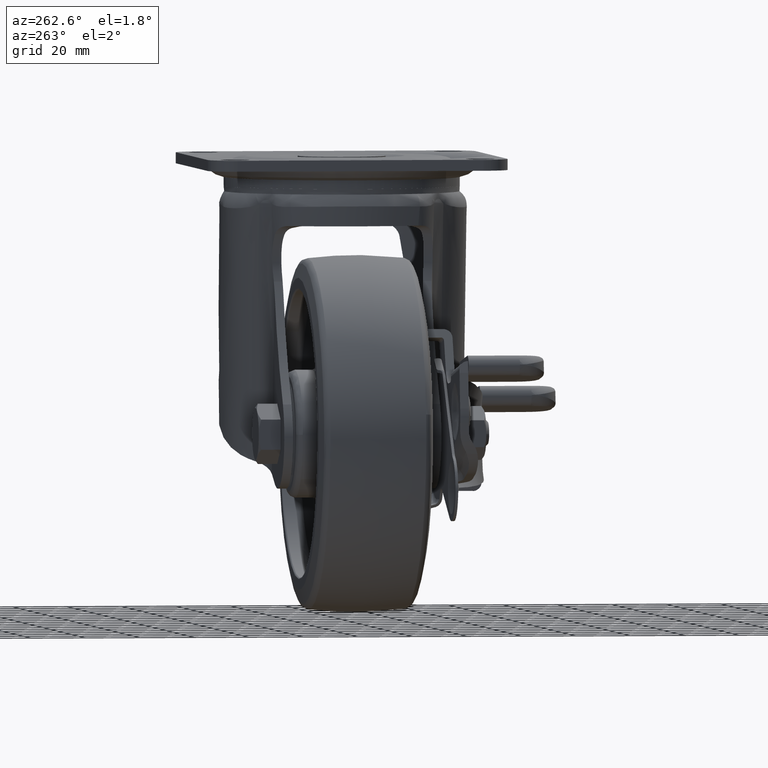
[diagram: clean part render]
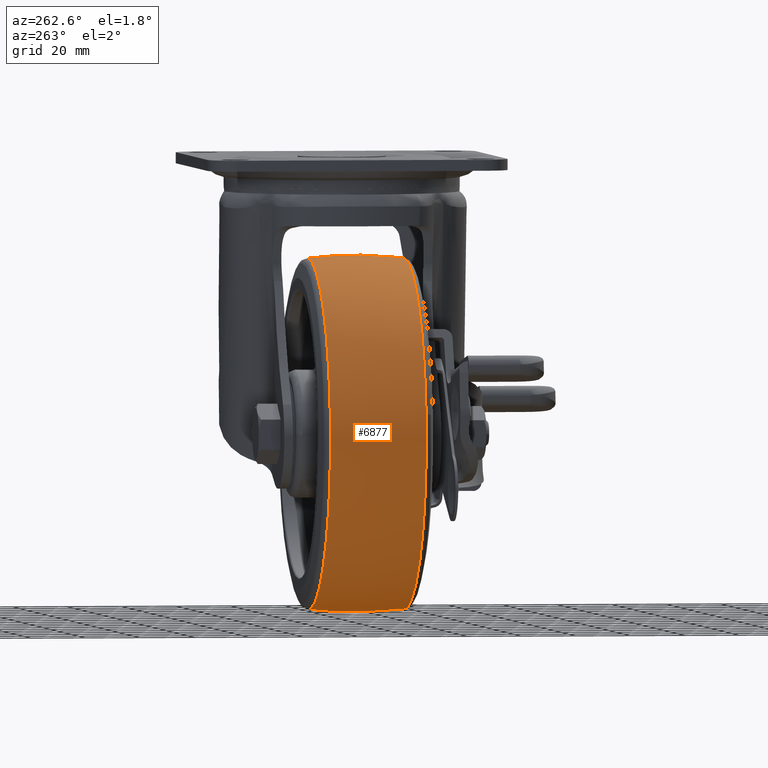
[diagram: same view with one face highlighted and labeled with its STEP entity id]
A machine part, auxiliary view. The second image highlights one B-rep face of the part: STEP entity #6877.
In plain terms, the highlighted face is a freeform B-spline surface patch.
Its self-contained STEP definition (entity closure, byte-faithful):
#6491=CARTESIAN_POINT('',(-103.356164379919800,-17.579459155829429,-91.186063303295668));
#6492=VERTEX_POINT('',#6491);
#6506=CARTESIAN_POINT('',(-40.0,-17.579458997022439,-163.966313042623510));
#6507=VERTEX_POINT('',#6506);
#6508=CARTESIAN_POINT('',(-103.356164379919760,-17.579459155829433,-91.186063303295668));
#6509=CARTESIAN_POINT('',(-103.966311709684990,-17.579459151713603,-95.571912815336276));
#6510=CARTESIAN_POINT('',(-103.966311657106200,-17.579459146799369,-99.999999964641418));
#6511=CARTESIAN_POINT('',(-103.966310897573720,-17.579459075810426,-163.966312950641590));
#6512=CARTESIAN_POINT('',(-40.0,-17.579458997022439,-163.966313042623510));
#6520=(BOUNDED_CURVE()B_SPLINE_CURVE(2,(#6508,#6509,#6510,#6511,#6512),.UNSPECIFIED.,.F.,.U.)B_SPLINE_CURVE_WITH_KNOTS((3,2,3),(0.726207391417963,0.750000000000000,1.0),.UNSPECIFIED.)CURVE()GEOMETRIC_REPRESENTATION_ITEM()RATIONAL_B_SPLINE_CURVE((0.949556159165341,0.972125225153754,1.0,0.707106781186547,1.0))REPRESENTATION_ITEM(''));
#6521=EDGE_CURVE('',#6492,#6507,#6520,.T.);
#6588=CARTESIAN_POINT('',(-40.0,-17.579458957985260,-36.033687281951387));
#6589=VERTEX_POINT('',#6588);
#6605=CARTESIAN_POINT('',(-40.0,-17.579458957985260,-36.033687281951387));
#6606=CARTESIAN_POINT('',(-95.683516036514959,-17.579459048492790,-36.033687176287323));
#6607=CARTESIAN_POINT('',(-103.356164379919760,-17.579459155829433,-91.186063303295668));
#6615=(BOUNDED_CURVE()B_SPLINE_CURVE(2,(#6605,#6606,#6607),.UNSPECIFIED.,.F.,.U.)B_SPLINE_CURVE_WITH_KNOTS((3,3),(0.500000000000000,0.726207391417963),.UNSPECIFIED.)CURVE()GEOMETRIC_REPRESENTATION_ITEM()RATIONAL_B_SPLINE_CURVE((1.0,0.734981556032793,0.949556159165341))REPRESENTATION_ITEM(''));
#6616=EDGE_CURVE('',#6589,#6492,#6615,.T.);
#6743=CARTESIAN_POINT('',(-40.0,17.579459266301640,-163.966313010845910));
#6744=VERTEX_POINT('',#6743);
#6745=CARTESIAN_POINT('',(-40.0,-17.579458997022439,-163.966313042623510));
#6746=CARTESIAN_POINT('',(-40.0,-12.475704540854929,-164.568687196460790));
#6747=CARTESIAN_POINT('',(-40.0,-0.739206846459537,-165.345160608785310));
#6748=CARTESIAN_POINT('',(-40.0,11.017552788090700,-164.740969832256100));
#6749=CARTESIAN_POINT('',(-40.0,17.579459266301640,-163.966313010845910));
#6750=B_SPLINE_CURVE_WITH_KNOTS('',3,(#6745,#6746,#6747,#6748,#6749),.UNSPECIFIED.,.F.,.U.,(4,1,4),(-6.530136E-009,15.417540335010081,35.239924201875581),.UNSPECIFIED.);
#6751=EDGE_CURVE('',#6507,#6744,#6750,.T.);
#6770=CARTESIAN_POINT('',(-40.0,17.579459266253920,-36.033686989148478));
#6771=VERTEX_POINT('',#6770);
#6785=CARTESIAN_POINT('',(-40.0,-17.579458957985260,-36.033687281951387));
#6786=CARTESIAN_POINT('',(-40.0,-12.475705655470639,-35.431301605639632));
#6787=CARTESIAN_POINT('',(-40.0,-0.739205450248273,-34.654858475055612));
#6788=CARTESIAN_POINT('',(-40.0,11.017552378356040,-35.259022886855433));
#6789=CARTESIAN_POINT('',(-40.0,17.579459266253920,-36.033686989148478));
#6790=B_SPLINE_CURVE_WITH_KNOTS('',3,(#6785,#6786,#6787,#6788,#6789),.UNSPECIFIED.,.F.,.U.,(4,1,4),(-6.527678E-009,15.417540317952650,35.239924162873201),.UNSPECIFIED.);
#6791=EDGE_CURVE('',#6589,#6771,#6790,.T.);
#6798=CARTESIAN_POINT('',(-38.217848808547622,-19.349517365063985,-36.253249177517795));
#6799=CARTESIAN_POINT('',(-38.182812077985950,-9.715344475056396,-35.000000999999905));
#6800=CARTESIAN_POINT('',(-38.182812077985950,2.755364E-015,-35.000000999999912));
#6801=CARTESIAN_POINT('',(-38.182812077985950,9.715344475056394,-35.000000999999905));
#6802=CARTESIAN_POINT('',(-38.217848808547615,19.349517365063971,-36.253249177517773));
#6803=CARTESIAN_POINT('',(-39.103735003093362,-19.349517365063985,-36.253249177517787));
#6804=CARTESIAN_POINT('',(-39.086114615239005,-9.715344475056398,-35.000000999999898));
#6805=CARTESIAN_POINT('',(-39.086114615239005,2.755364E-015,-35.000000999999912));
#6806=CARTESIAN_POINT('',(-39.086114615239005,9.715344475056396,-35.000000999999898));
#6807=CARTESIAN_POINT('',(-39.103735003093348,19.349517365063967,-36.253249177517773));
#6808=CARTESIAN_POINT('',(-103.746750822482200,-19.349517365063967,-36.253249177517787));
#6809=CARTESIAN_POINT('',(-104.999999000000100,-9.715344475056394,-35.000000999999905));
#6810=CARTESIAN_POINT('',(-104.999999000000100,2.755364E-015,-35.000000999999919));
#6811=CARTESIAN_POINT('',(-104.999999000000100,9.715344475056398,-35.000000999999905));
#6812=CARTESIAN_POINT('',(-103.746750822482210,19.349517365063971,-36.253249177517787));
#6813=CARTESIAN_POINT('',(-103.746750822482200,-19.349517365063981,-100.000000000000010));
#6814=CARTESIAN_POINT('',(-104.999999000000120,-9.715344475056398,-100.0));
#6815=CARTESIAN_POINT('',(-104.999999000000100,2.755364E-015,-100.0));
#6816=CARTESIAN_POINT('',(-104.999999000000120,9.715344475056396,-100.0));
#6817=CARTESIAN_POINT('',(-103.746750822482180,19.349517365063971,-100.0));
#6818=CARTESIAN_POINT('',(-103.746750822482200,-19.349517365063967,-163.746750822482110));
#6819=CARTESIAN_POINT('',(-104.999999000000100,-9.715344475056394,-164.999999000000120));
#6820=CARTESIAN_POINT('',(-104.999999000000100,2.755364E-015,-164.999999000000030));
#6821=CARTESIAN_POINT('',(-104.999999000000100,9.715344475056398,-164.999999000000120));
#6822=CARTESIAN_POINT('',(-103.746750822482210,19.349517365063971,-163.746750822482110));
#6823=CARTESIAN_POINT('',(-39.103735003093362,-19.349517365063985,-163.746750822482260));
#6824=CARTESIAN_POINT('',(-39.086114615239005,-9.715344475056398,-164.999999000000090));
#6825=CARTESIAN_POINT('',(-39.086114615239005,2.755364E-015,-164.999999000000170));
#6826=CARTESIAN_POINT('',(-39.086114615239005,9.715344475056396,-164.999999000000090));
#6827=CARTESIAN_POINT('',(-39.103735003093348,19.349517365063967,-163.746750822482230));
#6828=CARTESIAN_POINT('',(-38.217848808547608,-19.349517365063985,-163.746750822482260));
#6829=CARTESIAN_POINT('',(-38.182812077985950,-9.715344475056398,-164.999999000000120));
#6830=CARTESIAN_POINT('',(-38.182812077985957,2.755364E-015,-164.999999000000140));
#6831=CARTESIAN_POINT('',(-38.182812077985950,9.715344475056396,-164.999999000000120));
#6832=CARTESIAN_POINT('',(-38.217848808547608,19.349517365063967,-163.746750822482200));
#6840=(BOUNDED_SURFACE()B_SPLINE_SURFACE(2,2,((#6798,#6803,#6808,#6813,#6818,#6823,#6828),(#6799,#6804,#6809,#6814,#6819,#6824,#6829),(#6800,#6805,#6810,#6815,#6820,#6825,#6830),(#6801,#6806,#6811,#6816,#6821,#6826,#6831),(#6802,#6807,#6812,#6817,#6822,#6827,#6832)),.UNSPECIFIED.,.F.,.F.,.U.)B_SPLINE_SURFACE_WITH_KNOTS((3,2,3),(3,1,2,1,3),(0.0,19.658979611415560,39.317959222831121),(0.0,2.153910491203015,109.849435051353690,217.544959611504310,219.698870102707300),.UNSPECIFIED.)GEOMETRIC_REPRESENTATION_ITEM()RATIONAL_B_SPLINE_SURFACE(((0.984226136663244,0.978527437848646,0.687893798304133,0.972828739034048,0.687893798304133,0.978527437848646,0.984226136663244),(0.995789784055634,0.990024131376235,0.695975844726888,0.984258478696836,0.695975844726888,0.990024131376235,0.995789784055634),(1.011715728752538,1.005857864376269,0.707106781186548,1.0,0.707106781186548,1.005857864376269,1.011715728752538),(0.995789784055634,0.990024131376235,0.695975844726888,0.984258478696836,0.695975844726888,0.990024131376235,0.995789784055634),(0.984226136663244,0.978527437848646,0.687893798304133,0.972828739034048,0.687893798304133,0.978527437848646,0.984226136663244)))REPRESENTATION_ITEM('')SURFACE());
#6841=ORIENTED_EDGE('',*,*,#6751,.F.);
#6842=ORIENTED_EDGE('',*,*,#6521,.F.);
#6843=ORIENTED_EDGE('',*,*,#6616,.F.);
#6844=ORIENTED_EDGE('',*,*,#6791,.T.);
#6845=CARTESIAN_POINT('',(-103.557651188633500,17.579459409409829,-107.219006736649800));
#6846=VERTEX_POINT('',#6845);
#6847=CARTESIAN_POINT('',(-40.0,17.579459266253920,-36.033686989148478));
#6848=CARTESIAN_POINT('',(-103.966311391715730,17.579459330150272,-36.033687050230157));
#6849=CARTESIAN_POINT('',(-103.966311994031100,17.579459401738820,-100.000000129491100));
#6850=CARTESIAN_POINT('',(-103.966312028127530,17.579459405791376,-103.621070379198440));
#6851=CARTESIAN_POINT('',(-103.557651188633510,17.579459409409822,-107.219006736649760));
#6859=(BOUNDED_CURVE()B_SPLINE_CURVE(2,(#6847,#6848,#6849,#6850,#6851),.UNSPECIFIED.,.F.,.U.)B_SPLINE_CURVE_WITH_KNOTS((3,2,3),(0.500000000000000,0.750000000000000,0.769555762803325),.UNSPECIFIED.)CURVE()GEOMETRIC_REPRESENTATION_ITEM()RATIONAL_B_SPLINE_CURVE((1.0,0.707106781186548,1.0,0.977088998744727,0.957762334338532))REPRESENTATION_ITEM(''));
#6860=EDGE_CURVE('',#6771,#6846,#6859,.T.);
#6861=ORIENTED_EDGE('',*,*,#6860,.T.);
#6862=CARTESIAN_POINT('',(-103.557651188633510,17.579459409409822,-107.219006736649760));
#6863=CARTESIAN_POINT('',(-97.112177036245527,17.579459337866325,-163.966313079258130));
#6864=CARTESIAN_POINT('',(-40.0,17.579459266301640,-163.966313010845910));
#6872=(BOUNDED_CURVE()B_SPLINE_CURVE(2,(#6862,#6863,#6864),.UNSPECIFIED.,.F.,.U.)B_SPLINE_CURVE_WITH_KNOTS((3,3),(0.769555762803325,1.0),.UNSPECIFIED.)CURVE()GEOMETRIC_REPRESENTATION_ITEM()RATIONAL_B_SPLINE_CURVE((0.957762334338532,0.730017782441821,1.0))REPRESENTATION_ITEM(''));
#6873=EDGE_CURVE('',#6846,#6744,#6872,.T.);
#6874=ORIENTED_EDGE('',*,*,#6873,.T.);
#6875=EDGE_LOOP('',(#6841,#6842,#6843,#6844,#6861,#6874));
#6876=FACE_OUTER_BOUND('',#6875,.T.);
#6877=ADVANCED_FACE('',(#6876),#6840,.T.);